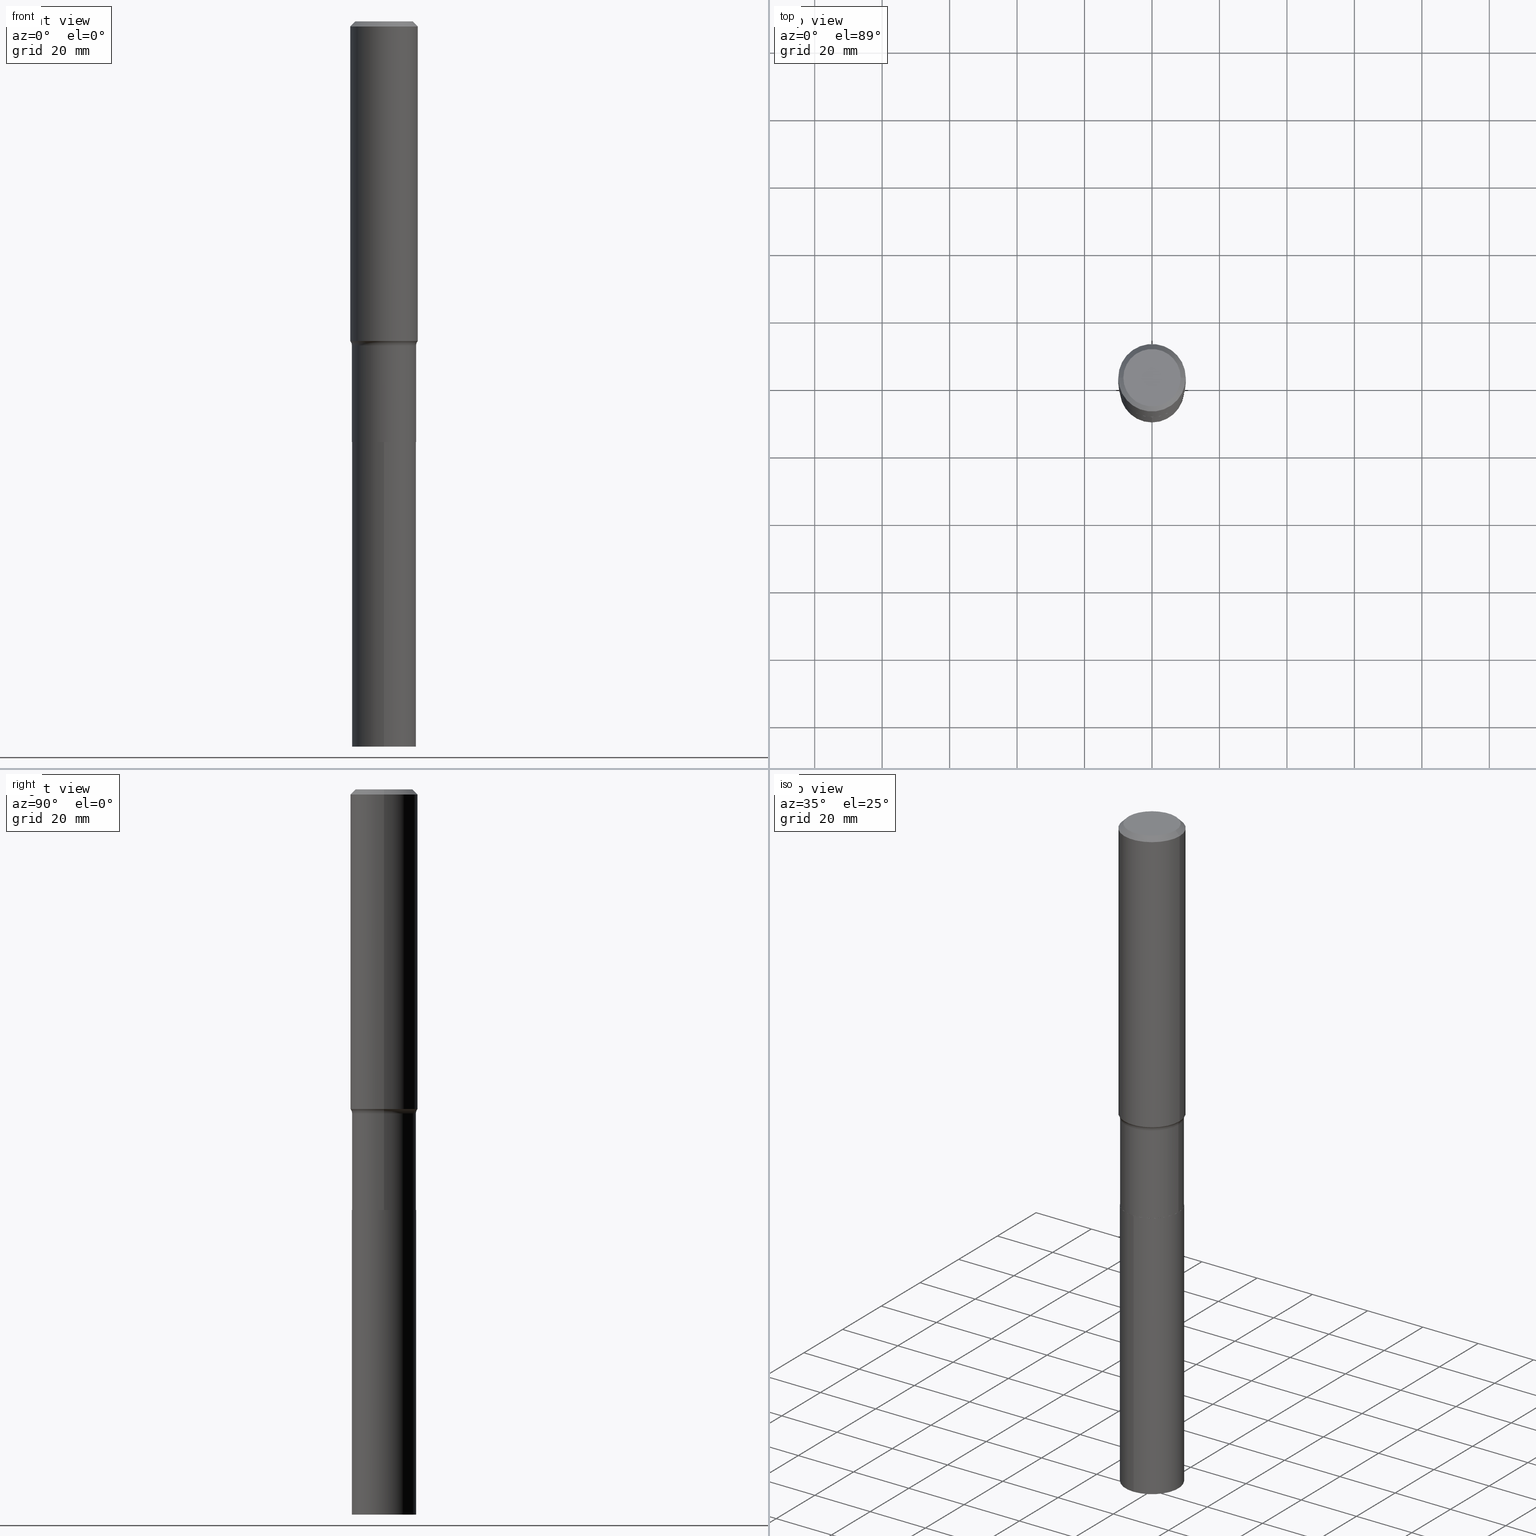
[diagram: canonical four-view strip — front | top / right | iso, engineering-drawing reading convention]
A machine part, canonical four-view strip (front | top / right | iso — engineering-drawing reading convention). The complete STEP part file that produces these views, byte-faithful:
ISO-10303-21;
HEADER;
FILE_DESCRIPTION (( 'STEP AP203' ),
    '1' );
FILE_NAME ('58927.STEP',
    '2024-04-19T14:52:08',
    ( '' ),
    ( '' ),
    'SwSTEP 2.0',
    'SolidWorks 2023',
    '' );
FILE_SCHEMA (( 'CONFIG_CONTROL_DESIGN' ));
ENDSEC;

DATA;
#1 = DIRECTION ( 'NONE',  ( -1.000000000000000000, 7.105427357601001859E-15, 0.000000000000000000 ) ) ;
#2 = CARTESIAN_POINT ( 'NONE',  ( 0.000000000000000000, 0.000000000000000000, 0.000000000000000000 ) ) ;
#3 = DIRECTION ( 'NONE',  ( 1.000000000000000000, -6.982962677686265922E-15, 4.876176775795935793E-29 ) ) ;
#4 = EDGE_CURVE ( 'NONE', #206, #464, #399, .T. ) ;
#5 = PERSON_AND_ORGANIZATION ( #410, #228 ) ;
#6 = DIRECTION ( 'NONE',  ( -6.982962677686266711E-15, -1.000000000000000000, 3.491481338843145583E-15 ) ) ;
#7 = CIRCLE ( 'NONE', #277, 0.3750000000000001110 ) ;
#8 = DIRECTION ( 'NONE',  ( -2.445198401079146413E-29, 3.491868574345426039E-15, 1.000000000000000000 ) ) ;
#9 = APPLICATION_PROTOCOL_DEFINITION ( 'international standard', 'config_control_design', 1994, #262 ) ;
#10 = DIRECTION ( 'NONE',  ( -1.000000000000000000, 6.982962677686265922E-15, -4.876176775795935793E-29 ) ) ;
#11 = CARTESIAN_POINT ( 'NONE',  ( 9.123302149498150808E-29, -1.302565754387660920E-14, -3.730696595443491859 ) ) ;
#12 = CALENDAR_DATE ( 2024, 19, 4 ) ;
#13 = DIRECTION ( 'NONE',  ( -2.445198401079146413E-29, 3.491868574345426433E-15, 1.000000000000000000 ) ) ;
#14 = EDGE_CURVE ( 'NONE', #425, #325, #250, .T. ) ;
#15 = CYLINDRICAL_SURFACE ( 'NONE', #330, 0.3937000000000002164 ) ;
#16 = PERSON_AND_ORGANIZATION ( #410, #228 ) ;
#17 = DIRECTION ( 'NONE',  ( 1.000000000000000000, -6.982962677686265133E-15, 0.000000000000000000 ) ) ;
#18 = EDGE_CURVE ( 'NONE', #465, #60, #77, .T. ) ;
#19 = CARTESIAN_POINT ( 'NONE',  ( -0.3937000000000000499, 2.543002975739700240E-15, -0.05905500000000039884 ) ) ;
#20 = DIRECTION ( 'NONE',  ( -2.445468806185136597E-29, 3.491481338843145583E-15, 1.000000000000000000 ) ) ;
#21 = EDGE_LOOP ( 'NONE', ( #422, #108, #272, #458 ) ) ;
#22 = CC_DESIGN_PERSON_AND_ORGANIZATION_ASSIGNMENT ( #16, #309, ( #286 ) ) ;
#23 = DIRECTION ( 'NONE',  ( -1.000000000000000000, 6.982962677686265922E-15, 0.000000000000000000 ) ) ;
#24 = AXIS2_PLACEMENT_3D ( 'NONE', #11, #47, #17 ) ;
#25 = VERTEX_POINT ( 'NONE', #265 ) ;
#26 = CC_DESIGN_APPROVAL ( #382, ( #407 ) ) ;
#27 = CARTESIAN_POINT ( 'NONE',  ( 1.444171603492642072E-30, -2.061894304653833712E-16, -0.05905500000000039884 ) ) ;
#28 = ORIENTED_EDGE ( 'NONE', *, *, #174, .F. ) ;
#29 = CARTESIAN_POINT ( 'NONE',  ( 0.3750000000000001110, -1.975864204464724661E-14, -4.909100000000002240 ) ) ;
#30 = EDGE_LOOP ( 'NONE', ( #243, #140, #141, #354 ) ) ;
#31 = AXIS2_PLACEMENT_3D ( 'NONE', #283, #296, #456 ) ;
#32 = CC_DESIGN_DATE_AND_TIME_ASSIGNMENT ( #305, #223, ( #235 ) ) ;
#33 = EDGE_CURVE ( 'NONE', #133, #59, #258, .T. ) ;
#34 =( GEOMETRIC_REPRESENTATION_CONTEXT ( 3 ) GLOBAL_UNCERTAINTY_ASSIGNED_CONTEXT ( ( #68 ) ) GLOBAL_UNIT_ASSIGNED_CONTEXT ( ( #403, #207, #438 ) ) REPRESENTATION_CONTEXT ( 'NONE', 'WORKASPACE' ) );
#35 = CARTESIAN_POINT ( 'NONE',  ( 2.664535259100583167E-15, 0.3749999999999829026, -4.909600000000002851 ) ) ;
#36 = CARTESIAN_POINT ( 'NONE',  ( 9.123302149498150808E-29, -1.302565754387660920E-14, -3.730696595443491859 ) ) ;
#37 = ADVANCED_FACE ( 'NONE', ( #38 ), #43, .F. ) ;
#38 = FACE_OUTER_BOUND ( 'NONE', #393, .T. ) ;
#39 = DATE_TIME_ROLE ( 'classification_date' ) ;
#40 = DIRECTION ( 'NONE',  ( 1.000000000000000000, -6.982962677686263555E-15, 0.000000000000000000 ) ) ;
#41 = CIRCLE ( 'NONE', #414, 0.3937000000000004940 ) ;
#42 = APPROVAL_STATUS ( 'not_yet_approved' ) ;
#43 = PLANE ( 'NONE',  #356 ) ;
#44 = DIRECTION ( 'NONE',  ( 1.000000000000000000, -6.982962677686265922E-15, 0.000000000000000000 ) ) ;
#45 = CALENDAR_DATE ( 2024, 19, 4 ) ;
#46 = DIRECTION ( 'NONE',  ( -2.445198401079146413E-29, 3.491868574345426039E-15, 1.000000000000000000 ) ) ;
#47 = DIRECTION ( 'NONE',  ( -2.445468806185136597E-29, 3.491481338843145583E-15, 1.000000000000000000 ) ) ;
#48 = DESIGN_CONTEXT ( 'detailed design', #262, 'design' ) ;
#49 = LINE ( 'NONE', #120, #205 ) ;
#50 = AXIS2_PLACEMENT_3D ( 'NONE', #127, #156, #91 ) ;
#51 = APPROVAL_PERSON_ORGANIZATION ( #229, #322, #260 ) ;
#52 = CARTESIAN_POINT ( 'NONE',  ( 9.249007571872807985E-29, -1.320513157163866504E-14, -3.782100000000001128 ) ) ;
#53 = CYLINDRICAL_SURFACE ( 'NONE', #324, 0.3937000000000002164 ) ;
#54 = CARTESIAN_POINT ( 'NONE',  ( 1.700800700278447744E-28, -9.979009940226196819E-15, -4.909600000000001963 ) ) ;
#55 = EDGE_LOOP ( 'NONE', ( #436, #106, #171, #288 ) ) ;
#56 = AXIS2_PLACEMENT_3D ( 'NONE', #413, #6, #40 ) ;
#57 = PLANE ( 'NONE',  #129 ) ;
#58 = AXIS2_PLACEMENT_3D ( 'NONE', #86, #268, #231 ) ;
#59 = VERTEX_POINT ( 'NONE', #85 ) ;
#60 = VERTEX_POINT ( 'NONE', #443 ) ;
#61 = LENGTH_MEASURE_WITH_UNIT ( LENGTH_MEASURE( 0.02539999999999999897 ), #360 );
#62 = EDGE_LOOP ( 'NONE', ( #401, #164, #246, #93 ) ) ;
#63 = EDGE_CURVE ( 'NONE', #457, #461, #336, .T. ) ;
#64 = ORIENTED_EDGE ( 'NONE', *, *, #71, .T. ) ;
#65 = ORIENTED_EDGE ( 'NONE', *, *, #388, .T. ) ;
#66 = CIRCLE ( 'NONE', #341, 0.3745000000000000551 ) ;
#67 = EDGE_LOOP ( 'NONE', ( #390, #251, #135, #142 ) ) ;
#68 = UNCERTAINTY_MEASURE_WITH_UNIT (LENGTH_MEASURE( 1.000000000000000082E-05 ), #403, 'distance_accuracy_value', 'NONE');
#69 = DIRECTION ( 'NONE',  ( -2.445468806185136597E-29, 3.491481338843145583E-15, 1.000000000000000000 ) ) ;
#70 = FACE_OUTER_BOUND ( 'NONE', #62, .T. ) ;
#71 = EDGE_CURVE ( 'NONE', #465, #25, #41, .T. ) ;
#72 = VECTOR ( 'NONE', #448, 39.37007874015748143 ) ;
#73 = APPROVAL_PERSON_ORGANIZATION ( #367, #382, #444 ) ;
#74 = CARTESIAN_POINT ( 'NONE',  ( -5.008488096090123536E-47, 7.150793614331970485E-33, 2.048068690724060346E-18 ) ) ;
#75 = DIRECTION ( 'NONE',  ( -2.445468806185136597E-29, 3.491481338843145583E-15, 1.000000000000000000 ) ) ;
#76 = PERSON_AND_ORGANIZATION_ROLE ( 'creator' ) ;
#77 = LINE ( 'NONE', #344, #99 ) ;
#78 = ADVANCED_FACE ( 'NONE', ( #411 ), #82, .F. ) ;
#79 = CLOSED_SHELL ( 'NONE', ( #244, #361, #314, #201, #139, #359, #379, #338, #214, #78, #468, #402 ) ) ;
#80 = AXIS2_PLACEMENT_3D ( 'NONE', #405, #333, #3 ) ;
#81 = DATE_AND_TIME ( #412, #294 ) ;
#82 = PLANE ( 'NONE',  #107 ) ;
#83 = CC_DESIGN_APPROVAL ( #322, ( #286 ) ) ;
#84 = DIRECTION ( 'NONE',  ( -1.000000000000000000, 6.982962677686265922E-15, 0.000000000000000000 ) ) ;
#85 = CARTESIAN_POINT ( 'NONE',  ( 0.3749999999999999445, -1.582374257577101506E-14, -3.782100000000001128 ) ) ;
#86 = CARTESIAN_POINT ( 'NONE',  ( 2.069895396668291892E-28, -2.955536956298230734E-14, -8.464600000000002566 ) ) ;
#87 = EDGE_CURVE ( 'NONE', #25, #59, #204, .T. ) ;
#88 = CARTESIAN_POINT ( 'NONE',  ( 2.069895396668291892E-28, -2.955536956298230734E-14, -8.464600000000002566 ) ) ;
#89 = AXIS2_PLACEMENT_3D ( 'NONE', #329, #13, #368 ) ;
#90 = CONICAL_SURFACE ( 'NONE', #363, 0.3745000000000000551, 0.7853981633978580623 ) ;
#91 = DIRECTION ( 'NONE',  ( 1.000000000000000000, -6.982962677686267499E-15, 4.883557194083112901E-29 ) ) ;
#92 = EDGE_LOOP ( 'NONE', ( #209, #427, #169, #216 ) ) ;
#93 = ORIENTED_EDGE ( 'NONE', *, *, #441, .F. ) ;
#94 = DIRECTION ( 'NONE',  ( -6.982962677686265922E-15, -1.000000000000000000, 2.913971193241880372E-15 ) ) ;
#95 = ORIENTED_EDGE ( 'NONE', *, *, #307, .F. ) ;
#96 = CARTESIAN_POINT ( 'NONE',  ( -0.3346450000000000258, 2.439908260507010921E-15, 4.096137381431418257E-18 ) ) ;
#97 = EDGE_LOOP ( 'NONE', ( #105, #241, #284, #249 ) ) ;
#98 = EDGE_CURVE ( 'NONE', #457, #200, #327, .T. ) ;
#99 = VECTOR ( 'NONE', #226, 39.37007874015748143 ) ;
#100 = CIRCLE ( 'NONE', #58, 0.3750000000000000555 ) ;
#101 = EDGE_LOOP ( 'NONE', ( #278, #433 ) ) ;
#102 = EDGE_CURVE ( 'NONE', #206, #434, #442, .T. ) ;
#103 = DIRECTION ( 'NONE',  ( -2.445468806185136597E-29, 3.491481338843145583E-15, 1.000000000000000000 ) ) ;
#104 = ORIENTED_EDGE ( 'NONE', *, *, #183, .T. ) ;
#105 = ORIENTED_EDGE ( 'NONE', *, *, #210, .T. ) ;
#106 = ORIENTED_EDGE ( 'NONE', *, *, #102, .T. ) ;
#107 = AXIS2_PLACEMENT_3D ( 'NONE', #74, #190, #10 ) ;
#108 = ORIENTED_EDGE ( 'NONE', *, *, #431, .F. ) ;
#109 = DIRECTION ( 'NONE',  ( 1.000000000000000000, 0.000000000000000000, 0.000000000000000000 ) ) ;
#110 = LINE ( 'NONE', #310, #72 ) ;
#111 = AXIS2_PLACEMENT_3D ( 'NONE', #239, #170, #94 ) ;
#112 = APPROVAL_STATUS ( 'not_yet_approved' ) ;
#113 = CARTESIAN_POINT ( 'NONE',  ( -2.618611004132230110E-15, -0.3750000000000171529, -4.909600000000000186 ) ) ;
#114 = CC_DESIGN_PERSON_AND_ORGANIZATION_ASSIGNMENT ( #154, #264, ( #235 ) ) ;
#115 = APPROVAL_STATUS ( 'not_yet_approved' ) ;
#116 = LINE ( 'NONE', #113, #179 ) ;
#117 = EDGE_CURVE ( 'NONE', #398, #325, #116, .T. ) ;
#118 = APPROVAL_DATE_TIME ( #370, #382 ) ;
#119 = CARTESIAN_POINT ( 'NONE',  ( 2.664535259100495209E-15, 0.3749999999999829026, -4.909600000000002851 ) ) ;
#120 = CARTESIAN_POINT ( 'NONE',  ( 0.3745000000000000551, -1.975689630397782116E-14, -4.909600000000001963 ) ) ;
#121 = AXIS2_PLACEMENT_3D ( 'NONE', #187, #373, #192 ) ;
#122 = AXIS2_PLACEMENT_3D ( 'NONE', #316, #455, #130 ) ;
#123 = COORDINATED_UNIVERSAL_TIME_OFFSET ( 5, 0, .BEHIND. ) ;
#124 = LINE ( 'NONE', #271, #188 ) ;
#125 = DIRECTION ( 'NONE',  ( 1.000000000000000000, -6.982962677686266711E-15, 4.876176775795935793E-29 ) ) ;
#126 = CARTESIAN_POINT ( 'NONE',  ( 0.3346450000000000258, -2.601499422326145188E-15, 4.096137381465387809E-18 ) ) ;
#127 = CARTESIAN_POINT ( 'NONE',  ( 9.249007571872807985E-29, -1.320513157163866504E-14, -3.782100000000001128 ) ) ;
#128 = ORIENTED_EDGE ( 'NONE', *, *, #33, .T. ) ;
#129 = AXIS2_PLACEMENT_3D ( 'NONE', #54, #364, #202 ) ;
#130 = DIRECTION ( 'NONE',  ( 1.000000000000000000, -6.982962677686265922E-15, 0.000000000000000000 ) ) ;
#131 = ORIENTED_EDGE ( 'NONE', *, *, #166, .T. ) ;
#132 = FACE_OUTER_BOUND ( 'NONE', #92, .T. ) ;
#133 = VERTEX_POINT ( 'NONE', #377 ) ;
#134 = CARTESIAN_POINT ( 'NONE',  ( -2.618611004132142940E-15, -0.3750000000000295874, -8.464600000000000790 ) ) ;
#135 = ORIENTED_EDGE ( 'NONE', *, *, #331, .T. ) ;
#136 = AXIS2_PLACEMENT_3D ( 'NONE', #306, #75, #300 ) ;
#137 = FACE_OUTER_BOUND ( 'NONE', #55, .T. ) ;
#138 = AXIS2_PLACEMENT_3D ( 'NONE', #424, #378, #44 ) ;
#139 = ADVANCED_FACE ( 'NONE', ( #155 ), #304, .T. ) ;
#140 = ORIENTED_EDGE ( 'NONE', *, *, #63, .T. ) ;
#141 = ORIENTED_EDGE ( 'NONE', *, *, #166, .F. ) ;
#142 = ORIENTED_EDGE ( 'NONE', *, *, #33, .F. ) ;
#143 = EDGE_LOOP ( 'NONE', ( #203, #64, #362, #254 ) ) ;
#144 = DIRECTION ( 'NONE',  ( -2.445468806185136597E-29, 3.491481338843145583E-15, 1.000000000000000000 ) ) ;
#145 = CARTESIAN_POINT ( 'NONE',  ( 1.200505091644346010E-28, -1.714003104051489344E-14, -4.909100000000002240 ) ) ;
#146 = FACE_OUTER_BOUND ( 'NONE', #245, .T. ) ;
#147 = DIRECTION ( 'NONE',  ( 0.7071067811865450192, -7.319954787623246579E-15, -0.7071067811865500152 ) ) ;
#148 = CLOSED_SHELL ( 'NONE', ( #222, #151, #369, #37 ) ) ;
#149 = AXIS2_PLACEMENT_3D ( 'NONE', #52, #193, #197 ) ;
#150 = CALENDAR_DATE ( 2024, 19, 4 ) ;
#151 = ADVANCED_FACE ( 'NONE', ( #146 ), #230, .F. ) ;
#152 = CARTESIAN_POINT ( 'NONE',  ( 0.3745000000000000551, -1.975689630397782116E-14, -4.909600000000001963 ) ) ;
#153 = EDGE_CURVE ( 'NONE', #248, #425, #297, .T. ) ;
#154 = PERSON_AND_ORGANIZATION ( #410, #228 ) ;
#155 = FACE_OUTER_BOUND ( 'NONE', #385, .T. ) ;
#156 = DIRECTION ( 'NONE',  ( -2.445468806185136597E-29, 3.491481338843145583E-15, 1.000000000000000000 ) ) ;
#157 = PERSON_AND_ORGANIZATION_ROLE ( 'design_owner' ) ;
#158 = CARTESIAN_POINT ( 'NONE',  ( 0.3937000000000000499, -2.907167492188035412E-15, -0.05905500000000039884 ) ) ;
#159 = CARTESIAN_POINT ( 'NONE',  ( 0.000000000000000000, 0.000000000000000000, 0.000000000000000000 ) ) ;
#160 = AXIS2_PLACEMENT_3D ( 'NONE', #88, #273, #375 ) ;
#161 = LINE ( 'NONE', #313, #269 ) ;
#162 = DIRECTION ( 'NONE',  ( -2.445468806185136877E-29, 3.491481338843145188E-15, 1.000000000000000000 ) ) ;
#163 = DIRECTION ( 'NONE',  ( 1.000000000000000000, -6.982962677686266711E-15, 4.876176775795935793E-29 ) ) ;
#164 = ORIENTED_EDGE ( 'NONE', *, *, #98, .T. ) ;
#165 = CIRCLE ( 'NONE', #24, 0.3937000000000004940 ) ;
#166 = EDGE_CURVE ( 'NONE', #395, #461, #366, .T. ) ;
#167 = APPROVAL_PERSON_ORGANIZATION ( #255, #198, #298 ) ;
#168 = CYLINDRICAL_SURFACE ( 'NONE', #219, 0.3750000000000000555 ) ;
#169 = ORIENTED_EDGE ( 'NONE', *, *, #117, .T. ) ;
#170 = DIRECTION ( 'NONE',  ( -2.445198401079146413E-29, 3.491868574345426433E-15, 1.000000000000000000 ) ) ;
#171 = ORIENTED_EDGE ( 'NONE', *, *, #274, .T. ) ;
#172 = APPLICATION_CONTEXT ( 'configuration controlled 3d designs of mechanical parts and assemblies' ) ;
#173 = DIRECTION ( 'NONE',  ( -2.445468806185136597E-29, 3.491481338843145583E-15, 1.000000000000000000 ) ) ;
#174 = EDGE_CURVE ( 'NONE', #25, #434, #110, .T. ) ;
#175 = AXIS2_PLACEMENT_3D ( 'NONE', #287, #318, #1 ) ;
#176 = ORIENTED_EDGE ( 'NONE', *, *, #87, .F. ) ;
#177 = AXIS2_PLACEMENT_3D ( 'NONE', #225, #335, #109 ) ;
#178 = DIRECTION ( 'NONE',  ( -2.445468806185136597E-29, 3.491481338843145583E-15, 1.000000000000000000 ) ) ;
#179 = VECTOR ( 'NONE', #8, 39.37007874015748143 ) ;
#180 = CIRCLE ( 'NONE', #122, 0.3937000000000000499 ) ;
#181 = CC_DESIGN_APPROVAL ( #198, ( #235 ) ) ;
#182 = DIRECTION ( 'NONE',  ( -0.7071067811868372299, 7.493145998871401767E-15, 0.7071067811862578045 ) ) ;
#183 = EDGE_CURVE ( 'NONE', #461, #133, #124, .T. ) ;
#184 = COORDINATED_UNIVERSAL_TIME_OFFSET ( 5, 0, .BEHIND. ) ;
#185 = DIRECTION ( 'NONE',  ( 2.445198401079146413E-29, -3.491868574345426039E-15, -1.000000000000000000 ) ) ;
#186 = APPLICATION_PROTOCOL_DEFINITION ( 'international standard', 'config_control_design', 1994, #172 ) ;
#187 = CARTESIAN_POINT ( 'NONE',  ( 1.200627365084655066E-28, -1.714177678118431257E-14, -4.909600000000001963 ) ) ;
#188 = VECTOR ( 'NONE', #419, 39.37007874015748143 ) ;
#189 = LOCAL_TIME ( 10, 52, 8.000000000000000000, #376 ) ;
#190 = DIRECTION ( 'NONE',  ( 2.438088387897960049E-29, -3.491481338843145188E-15, -1.000000000000000000 ) ) ;
#191 = COORDINATED_UNIVERSAL_TIME_OFFSET ( 5, 0, .BEHIND. ) ;
#192 = DIRECTION ( 'NONE',  ( 1.000000000000000000, -6.982962677686268288E-15, 0.000000000000000000 ) ) ;
#193 = DIRECTION ( 'NONE',  ( -2.445468806185136597E-29, 3.491481338843145583E-15, 1.000000000000000000 ) ) ;
#194 = LINE ( 'NONE', #19, #259 ) ;
#195 = TOROIDAL_SURFACE ( 'NONE', #449, 0.4549999999999999045, 0.08000000000000023759 ) ;
#196 = PRODUCT ( '58927', '58927', '', ( #418 ) ) ;
#197 = DIRECTION ( 'NONE',  ( 1.000000000000000000, -6.982962677686269077E-15, 0.000000000000000000 ) ) ;
#198 = APPROVAL ( #42, 'UNSPECIFIED' ) ;
#199 = FACE_OUTER_BOUND ( 'NONE', #217, .T. ) ;
#200 = VERTEX_POINT ( 'NONE', #152 ) ;
#201 = ADVANCED_FACE ( 'NONE', ( #221 ), #302, .F. ) ;
#202 = DIRECTION ( 'NONE',  ( 1.000000000000000000, -6.982962677686265922E-15, 4.876176775795935793E-29 ) ) ;
#203 = ORIENTED_EDGE ( 'NONE', *, *, #18, .F. ) ;
#204 = CIRCLE ( 'NONE', #56, 0.08000000000000023759 ) ;
#205 = VECTOR ( 'NONE', #275, 39.37007874015748143 ) ;
#206 = VERTEX_POINT ( 'NONE', #126 ) ;
#207 =( NAMED_UNIT ( * ) PLANE_ANGLE_UNIT ( ) SI_UNIT ( $, .RADIAN. ) );
#208 = ORIENTED_EDGE ( 'NONE', *, *, #232, .F. ) ;
#209 = ORIENTED_EDGE ( 'NONE', *, *, #153, .F. ) ;
#210 = EDGE_CURVE ( 'NONE', #398, #248, #227, .T. ) ;
#211 = CIRCLE ( 'NONE', #31, 0.3346450000000000258 ) ;
#212 = CONICAL_SURFACE ( 'NONE', #430, 0.3937000000000000499, 0.7853981633974447263 ) ;
#213 = CARTESIAN_POINT ( 'NONE',  ( -1.001697619218024707E-46, 1.430158722866394097E-32, 4.096137381448120692E-18 ) ) ;
#214 = ADVANCED_FACE ( 'NONE', ( #311 ), #212, .T. ) ;
#215 = DIRECTION ( 'NONE',  ( -2.445468806185136597E-29, 3.491481338843145583E-15, 1.000000000000000000 ) ) ;
#216 = ORIENTED_EDGE ( 'NONE', *, *, #14, .F. ) ;
#217 = EDGE_LOOP ( 'NONE', ( #355, #435, #319, #28 ) ) ;
#218 = PRODUCT_RELATED_PRODUCT_CATEGORY ( 'detail', '', ( #196 ) ) ;
#219 = AXIS2_PLACEMENT_3D ( 'NONE', #2, #215, #332 ) ;
#220 = APPROVAL_DATE_TIME ( #404, #198 ) ;
#221 = FACE_OUTER_BOUND ( 'NONE', #397, .T. ) ;
#222 = ADVANCED_FACE ( 'NONE', ( #352 ), #417, .T. ) ;
#223 = DATE_TIME_ROLE ( 'creation_date' ) ;
#224 = DIRECTION ( 'NONE',  ( 6.982962677686265922E-15, 1.000000000000000000, -3.491868574345426039E-15 ) ) ;
#225 = CARTESIAN_POINT ( 'NONE',  ( 0.000000000000000000, 0.000000000000000000, 0.000000000000000000 ) ) ;
#226 = DIRECTION ( 'NONE',  ( -2.445468806185136877E-29, 3.491481338843145188E-15, 1.000000000000000000 ) ) ;
#227 = CIRCLE ( 'NONE', #160, 0.3750000000000000555 ) ;
#228 = ORGANIZATION ( 'UNSPECIFIED', 'UNSPECIFIED', '' ) ;
#229 = PERSON_AND_ORGANIZATION ( #410, #228 ) ;
#230 = PLANE ( 'NONE',  #312 ) ;
#231 = DIRECTION ( 'NONE',  ( -6.982962677686265922E-15, -1.000000000000000000, 2.913971193241880372E-15 ) ) ;
#232 = EDGE_CURVE ( 'NONE', #248, #398, #100, .T. ) ;
#233 = DIRECTION ( 'NONE',  ( 1.000000000000000000, -6.982962677686265133E-15, 0.000000000000000000 ) ) ;
#234 = DIRECTION ( 'NONE',  ( -6.982962677686265922E-15, -1.000000000000000000, 2.913971193241880372E-15 ) ) ;
#235 = PRODUCT_DEFINITION ( 'UNKNOWN', '', #407, #48 ) ;
#236 = DIRECTION ( 'NONE',  ( -2.445198401079146413E-29, 3.491868574345426433E-15, 1.000000000000000000 ) ) ;
#237 = DIRECTION ( 'NONE',  ( 1.000000000000000000, -6.982962677686268288E-15, 0.000000000000000000 ) ) ;
#238 = ORIENTED_EDGE ( 'NONE', *, *, #331, .F. ) ;
#239 = CARTESIAN_POINT ( 'NONE',  ( 1.200627365084655066E-28, -1.714177678118431257E-14, -4.909600000000001963 ) ) ;
#240 = DIMENSIONAL_EXPONENTS ( 1.000000000000000000, 0.000000000000000000, 0.000000000000000000, 0.000000000000000000, 0.000000000000000000, 0.000000000000000000, 0.000000000000000000 ) ;
#241 = ORIENTED_EDGE ( 'NONE', *, *, #153, .T. ) ;
#242 = CARTESIAN_POINT ( 'NONE',  ( -0.3937000000000006605, -1.022825079318909047E-14, -3.730696595443491859 ) ) ;
#243 = ORIENTED_EDGE ( 'NONE', *, *, #454, .T. ) ;
#244 = ADVANCED_FACE ( 'NONE', ( #381 ), #415, .T. ) ;
#245 = EDGE_LOOP ( 'NONE', ( #387, #208 ) ) ;
#246 = ORIENTED_EDGE ( 'NONE', *, *, #293, .T. ) ;
#247 = DIRECTION ( 'NONE',  ( 1.000000000000000000, -6.982962677686268288E-15, 0.000000000000000000 ) ) ;
#248 = VERTEX_POINT ( 'NONE', #384 ) ;
#249 = ORIENTED_EDGE ( 'NONE', *, *, #117, .F. ) ;
#250 = CIRCLE ( 'NONE', #89, 0.3750000000000000555 ) ;
#251 = ORIENTED_EDGE ( 'NONE', *, *, #441, .T. ) ;
#252 = VECTOR ( 'NONE', #409, 39.37007874015748143 ) ;
#253 = CARTESIAN_POINT ( 'NONE',  ( -0.3750000000000001110, -1.250804604697640197E-14, -4.909100000000002240 ) ) ;
#254 = ORIENTED_EDGE ( 'NONE', *, *, #343, .F. ) ;
#255 = PERSON_AND_ORGANIZATION ( #410, #228 ) ;
#256 = EDGE_CURVE ( 'NONE', #325, #425, #400, .T. ) ;
#257 = CARTESIAN_POINT ( 'NONE',  ( -0.3745000000000000551, -1.448079423576273541E-14, -4.909600000000001963 ) ) ;
#258 = CIRCLE ( 'NONE', #136, 0.3749999999999999445 ) ;
#259 = VECTOR ( 'NONE', #350, 39.37007874015748143 ) ;
#260 = APPROVAL_ROLE ( '' ) ;
#261 = DIRECTION ( 'NONE',  ( -6.982962677686265922E-15, -1.000000000000000000, 3.491868574345426039E-15 ) ) ;
#262 = APPLICATION_CONTEXT ( 'configuration controlled 3d designs of mechanical parts and assemblies' ) ;
#263 = CC_DESIGN_PERSON_AND_ORGANIZATION_ASSIGNMENT ( #447, #349, ( #407 ) ) ;
#264 = PERSON_AND_ORGANIZATION_ROLE ( 'creator' ) ;
#265 = CARTESIAN_POINT ( 'NONE',  ( 0.3937000000000006605, -1.577484995008169557E-14, -3.730696595443491859 ) ) ;
#266 = COORDINATED_UNIVERSAL_TIME_OFFSET ( 5, 0, .BEHIND. ) ;
#267 = CARTESIAN_POINT ( 'NONE',  ( 7.011209276711207555E-29, -2.429499326635448303E-14, -4.909600000000001963 ) ) ;
#268 = DIRECTION ( 'NONE',  ( -2.445198401079146413E-29, 3.491868574345426433E-15, 1.000000000000000000 ) ) ;
#269 = VECTOR ( 'NONE', #162, 39.37007874015748143 ) ;
#270 = CC_DESIGN_DATE_AND_TIME_ASSIGNMENT ( #81, #39, ( #286 ) ) ;
#271 = CARTESIAN_POINT ( 'NONE',  ( -0.3750000000000000555, 2.664535259100376091E-15, -1.844600658845589598E-29 ) ) ;
#272 = ORIENTED_EDGE ( 'NONE', *, *, #326, .T. ) ;
#273 = DIRECTION ( 'NONE',  ( -2.445198401079146413E-29, 3.491868574345426433E-15, 1.000000000000000000 ) ) ;
#274 = EDGE_CURVE ( 'NONE', #434, #60, #351, .T. ) ;
#275 = DIRECTION ( 'NONE',  ( 0.7071067811868372299, -2.468850131085291414E-15, 0.7071067811862578045 ) ) ;
#276 = ORIENTED_EDGE ( 'NONE', *, *, #388, .F. ) ;
#277 = AXIS2_PLACEMENT_3D ( 'NONE', #145, #144, #386 ) ;
#278 = ORIENTED_EDGE ( 'NONE', *, *, #431, .T. ) ;
#279 = FACE_OUTER_BOUND ( 'NONE', #67, .T. ) ;
#280 = ORIENTED_EDGE ( 'NONE', *, *, #14, .T. ) ;
#281 = CARTESIAN_POINT ( 'NONE',  ( -0.3745000000000000551, -1.447814500858862657E-14, -4.909600000000001963 ) ) ;
#282 = ORIENTED_EDGE ( 'NONE', *, *, #307, .T. ) ;
#283 = CARTESIAN_POINT ( 'NONE',  ( -1.001697619218024707E-46, 1.430158722866394097E-32, 4.096137381448120692E-18 ) ) ;
#284 = ORIENTED_EDGE ( 'NONE', *, *, #256, .F. ) ;
#285 = CONICAL_SURFACE ( 'NONE', #406, 0.3937000000000000499, 0.7853981633974447263 ) ;
#286 = SECURITY_CLASSIFICATION ( '', '', #440 ) ;
#287 = CARTESIAN_POINT ( 'NONE',  ( -0.4549999999999999045, -9.972162123930208692E-15, -3.782100000000001128 ) ) ;
#288 = ORIENTED_EDGE ( 'NONE', *, *, #326, .F. ) ;
#289 = CC_DESIGN_PERSON_AND_ORGANIZATION_ASSIGNMENT ( #372, #157, ( #196 ) ) ;
#290 = EDGE_LOOP ( 'NONE', ( #365, #321 ) ) ;
#291 = EDGE_LOOP ( 'NONE', ( #276, #429, #467, #282 ) ) ;
#292 = ORIENTED_EDGE ( 'NONE', *, *, #71, .F. ) ;
#293 = EDGE_CURVE ( 'NONE', #200, #395, #49, .T. ) ;
#294 = LOCAL_TIME ( 10, 52, 8.000000000000000000, #266 ) ;
#295 = EDGE_CURVE ( 'NONE', #25, #465, #165, .T. ) ;
#296 = DIRECTION ( 'NONE',  ( -2.445468806185136597E-29, 3.491481338843145583E-15, 1.000000000000000000 ) ) ;
#297 = LINE ( 'NONE', #119, #252 ) ;
#298 = APPROVAL_ROLE ( '' ) ;
#299 = CC_DESIGN_PERSON_AND_ORGANIZATION_ASSIGNMENT ( #5, #76, ( #407 ) ) ;
#300 = DIRECTION ( 'NONE',  ( 1.000000000000000000, -6.982962677686269077E-15, 0.000000000000000000 ) ) ;
#301 = AXIS2_PLACEMENT_3D ( 'NONE', #213, #178, #459 ) ;
#302 = TOROIDAL_SURFACE ( 'NONE', #50, 0.4549999999999999045, 0.08000000000000023759 ) ;
#303 = DATE_AND_TIME ( #12, #189 ) ;
#304 = CYLINDRICAL_SURFACE ( 'NONE', #80, 0.3750000000000000555 ) ;
#305 = DATE_AND_TIME ( #150, #392 ) ;
#306 = CARTESIAN_POINT ( 'NONE',  ( 9.249007571872807985E-29, -1.320513157163866504E-14, -3.782100000000001128 ) ) ;
#307 = EDGE_CURVE ( 'NONE', #59, #133, #437, .T. ) ;
#308 = DIRECTION ( 'NONE',  ( -6.982962677686265922E-15, -1.000000000000000000, 2.913971193241880372E-15 ) ) ;
#309 = PERSON_AND_ORGANIZATION_ROLE ( 'classification_officer' ) ;
#310 = CARTESIAN_POINT ( 'NONE',  ( 0.3937000000000002164, -2.749192406205084794E-15, 1.919750796630861012E-29 ) ) ;
#311 = FACE_OUTER_BOUND ( 'NONE', #21, .T. ) ;
#312 = AXIS2_PLACEMENT_3D ( 'NONE', #445, #46, #261 ) ;
#313 = CARTESIAN_POINT ( 'NONE',  ( 0.3750000000000000555, -2.618611004132350016E-15, 1.828566290923476203E-29 ) ) ;
#314 = ADVANCED_FACE ( 'NONE', ( #199 ), #15, .T. ) ;
#315 = FACE_OUTER_BOUND ( 'NONE', #143, .T. ) ;
#316 = CARTESIAN_POINT ( 'NONE',  ( 1.444171603492642072E-30, -2.061894304653833712E-16, -0.05905500000000039884 ) ) ;
#317 = AXIS2_PLACEMENT_3D ( 'NONE', #348, #446, #237 ) ;
#318 = DIRECTION ( 'NONE',  ( 7.105427357601001859E-15, 1.000000000000000000, -3.491481338843145583E-15 ) ) ;
#319 = ORIENTED_EDGE ( 'NONE', *, *, #274, .F. ) ;
#320 = FACE_OUTER_BOUND ( 'NONE', #291, .T. ) ;
#321 = ORIENTED_EDGE ( 'NONE', *, *, #98, .F. ) ;
#322 = APPROVAL ( #112, 'UNSPECIFIED' ) ;
#323 = CYLINDRICAL_SURFACE ( 'NONE', #111, 0.3750000000000000555 ) ;
#324 = AXIS2_PLACEMENT_3D ( 'NONE', #353, #20, #163 ) ;
#325 = VERTEX_POINT ( 'NONE', #420 ) ;
#326 = EDGE_CURVE ( 'NONE', #464, #60, #194, .T. ) ;
#327 = CIRCLE ( 'NONE', #121, 0.3745000000000000551 ) ;
#328 = DIRECTION ( 'NONE',  ( 1.000000000000000000, -6.982962677686267499E-15, 4.883557194083112901E-29 ) ) ;
#329 = CARTESIAN_POINT ( 'NONE',  ( 1.200627365084655291E-28, -1.714177678118431573E-14, -4.909600000000001963 ) ) ;
#330 = AXIS2_PLACEMENT_3D ( 'NONE', #159, #450, #125 ) ;
#331 = EDGE_CURVE ( 'NONE', #395, #59, #161, .T. ) ;
#332 = DIRECTION ( 'NONE',  ( 1.000000000000000000, -6.982962677686265922E-15, 4.876176775795935793E-29 ) ) ;
#333 = DIRECTION ( 'NONE',  ( -2.445468806185136597E-29, 3.491481338843145583E-15, 1.000000000000000000 ) ) ;
#334 = PRODUCT_DEFINITION_SHAPE ( 'NONE', 'NONE',  #235 ) ;
#335 = DIRECTION ( 'NONE',  ( 0.000000000000000000, 0.000000000000000000, 1.000000000000000000 ) ) ;
#336 = LINE ( 'NONE', #257, #462 ) ;
#337 = MANIFOLD_SOLID_BREP ( 'Body-Move/Copy2[1]', #148 ) ;
#338 = ADVANCED_FACE ( 'NONE', ( #315 ), #53, .T. ) ;
#339 = SHAPE_DEFINITION_REPRESENTATION ( #334, #466 ) ;
#340 = DIRECTION ( 'NONE',  ( -2.445468806185136597E-29, 3.491481338843145583E-15, 1.000000000000000000 ) ) ;
#341 = AXIS2_PLACEMENT_3D ( 'NONE', #396, #69, #426 ) ;
#342 = MANIFOLD_SOLID_BREP ( 'Body-Move/Copy2[2]', #79 ) ;
#343 = EDGE_CURVE ( 'NONE', #60, #434, #180, .T. ) ;
#344 = CARTESIAN_POINT ( 'NONE',  ( -0.3937000000000002164, 2.797406750687515970E-15, -1.936584745033357576E-29 ) ) ;
#345 = DIRECTION ( 'NONE',  ( -2.445198401079146413E-29, 3.491868574345426433E-15, 1.000000000000000000 ) ) ;
#346 = CALENDAR_DATE ( 2024, 19, 4 ) ;
#347 = DIRECTION ( 'NONE',  ( 1.000000000000000000, -6.982962677686270655E-15, 0.000000000000000000 ) ) ;
#348 = CARTESIAN_POINT ( 'NONE',  ( 1.200627365084655066E-28, -1.714177678118431257E-14, -4.909600000000001963 ) ) ;
#349 = PERSON_AND_ORGANIZATION_ROLE ( 'design_supplier' ) ;
#350 = DIRECTION ( 'NONE',  ( -0.7071067811865450192, 2.468850131082230634E-15, -0.7071067811865500152 ) ) ;
#351 = CIRCLE ( 'NONE', #138, 0.3937000000000000499 ) ;
#352 = FACE_OUTER_BOUND ( 'NONE', #97, .T. ) ;
#353 = CARTESIAN_POINT ( 'NONE',  ( 0.000000000000000000, 0.000000000000000000, 0.000000000000000000 ) ) ;
#354 = ORIENTED_EDGE ( 'NONE', *, *, #293, .F. ) ;
#355 = ORIENTED_EDGE ( 'NONE', *, *, #295, .T. ) ;
#356 = AXIS2_PLACEMENT_3D ( 'NONE', #267, #185, #224 ) ;
#357 = AXIS2_PLACEMENT_3D ( 'NONE', #439, #340, #347 ) ;
#358 = CC_DESIGN_SECURITY_CLASSIFICATION ( #286, ( #407 ) ) ;
#359 = ADVANCED_FACE ( 'NONE', ( #279 ), #168, .T. ) ;
#360 =( LENGTH_UNIT ( ) NAMED_UNIT ( * ) SI_UNIT ( $, .METRE. ) );
#361 = ADVANCED_FACE ( 'NONE', ( #137 ), #285, .T. ) ;
#362 = ORIENTED_EDGE ( 'NONE', *, *, #174, .T. ) ;
#363 = AXIS2_PLACEMENT_3D ( 'NONE', #432, #103, #247 ) ;
#364 = DIRECTION ( 'NONE',  ( -2.438088387897960049E-29, 3.491481338843145188E-15, 1.000000000000000000 ) ) ;
#365 = ORIENTED_EDGE ( 'NONE', *, *, #454, .F. ) ;
#366 = CIRCLE ( 'NONE', #357, 0.3750000000000001110 ) ;
#367 = PERSON_AND_ORGANIZATION ( #410, #228 ) ;
#368 = DIRECTION ( 'NONE',  ( -6.982962677686265922E-15, -1.000000000000000000, 2.913971193241880372E-15 ) ) ;
#369 = ADVANCED_FACE ( 'NONE', ( #132 ), #323, .T. ) ;
#370 = DATE_AND_TIME ( #346, #423 ) ;
#371 = DIRECTION ( 'NONE',  ( -2.445468806185136597E-29, 3.491481338843145583E-15, 1.000000000000000000 ) ) ;
#372 = PERSON_AND_ORGANIZATION ( #410, #228 ) ;
#373 = DIRECTION ( 'NONE',  ( -2.445468806185136597E-29, 3.491481338843145583E-15, 1.000000000000000000 ) ) ;
#374 = AXIS2_PLACEMENT_3D ( 'NONE', #452, #345, #234 ) ;
#375 = DIRECTION ( 'NONE',  ( -6.982962677686265922E-15, -1.000000000000000000, 2.913971193241880372E-15 ) ) ;
#376 = COORDINATED_UNIVERSAL_TIME_OFFSET ( 5, 0, .BEHIND. ) ;
#377 = CARTESIAN_POINT ( 'NONE',  ( -0.3749999999999999445, -1.250804604697640197E-14, -3.782100000000001128 ) ) ;
#378 = DIRECTION ( 'NONE',  ( -2.445468806185136597E-29, 3.491481338843145583E-15, 1.000000000000000000 ) ) ;
#379 = ADVANCED_FACE ( 'NONE', ( #320 ), #195, .F. ) ;
#380 = CARTESIAN_POINT ( 'NONE',  ( 1.200627365084655066E-28, -1.714177678118431257E-14, -4.909600000000001963 ) ) ;
#381 = FACE_OUTER_BOUND ( 'NONE', #30, .T. ) ;
#382 = APPROVAL ( #115, 'UNSPECIFIED' ) ;
#383 = CIRCLE ( 'NONE', #175, 0.08000000000000023759 ) ;
#384 = CARTESIAN_POINT ( 'NONE',  ( 2.664535259100538991E-15, 0.3749999999999704681, -8.464600000000004343 ) ) ;
#385 = EDGE_LOOP ( 'NONE', ( #131, #104, #95, #238 ) ) ;
#386 = DIRECTION ( 'NONE',  ( 1.000000000000000000, -6.982962677686270655E-15, 0.000000000000000000 ) ) ;
#387 = ORIENTED_EDGE ( 'NONE', *, *, #210, .F. ) ;
#388 = EDGE_CURVE ( 'NONE', #465, #133, #383, .T. ) ;
#389 = FACE_OUTER_BOUND ( 'NONE', #290, .T. ) ;
#390 = ORIENTED_EDGE ( 'NONE', *, *, #183, .F. ) ;
#391 = VECTOR ( 'NONE', #147, 39.37007874015748143 ) ;
#392 = LOCAL_TIME ( 10, 52, 8.000000000000000000, #191 ) ;
#393 = EDGE_LOOP ( 'NONE', ( #453, #280 ) ) ;
#394 = DIRECTION ( 'NONE',  ( 2.445468806185136597E-29, -3.491481338843145583E-15, -1.000000000000000000 ) ) ;
#395 = VERTEX_POINT ( 'NONE', #29 ) ;
#396 = CARTESIAN_POINT ( 'NONE',  ( 1.200627365084655066E-28, -1.714177678118431257E-14, -4.909600000000001963 ) ) ;
#397 = EDGE_LOOP ( 'NONE', ( #292, #65, #128, #176 ) ) ;
#398 = VERTEX_POINT ( 'NONE', #134 ) ;
#399 = CIRCLE ( 'NONE', #301, 0.3346450000000000258 ) ;
#400 = CIRCLE ( 'NONE', #374, 0.3750000000000000555 ) ;
#401 = ORIENTED_EDGE ( 'NONE', *, *, #63, .F. ) ;
#402 = ADVANCED_FACE ( 'NONE', ( #70 ), #90, .T. ) ;
#403 =( CONVERSION_BASED_UNIT ( 'INCH', #61 ) LENGTH_UNIT ( ) NAMED_UNIT ( #240 ) );
#404 = DATE_AND_TIME ( #45, #416 ) ;
#405 = CARTESIAN_POINT ( 'NONE',  ( 0.000000000000000000, 0.000000000000000000, 0.000000000000000000 ) ) ;
#406 = AXIS2_PLACEMENT_3D ( 'NONE', #27, #394, #23 ) ;
#407 = PRODUCT_DEFINITION_FORMATION_WITH_SPECIFIED_SOURCE ( 'ANY', '', #196, .NOT_KNOWN. ) ;
#408 = APPROVAL_DATE_TIME ( #303, #322 ) ;
#409 = DIRECTION ( 'NONE',  ( -2.445198401079146413E-29, 3.491868574345426039E-15, 1.000000000000000000 ) ) ;
#410 = PERSON ( 'UNSPECIFIED', 'UNSPECIFIED', 'UNSPECIFIED', ('UNSPECIFIED'), ('UNSPECIFIED'), ('UNSPECIFIED') ) ;
#411 = FACE_OUTER_BOUND ( 'NONE', #101, .T. ) ;
#412 = CALENDAR_DATE ( 2024, 19, 4 ) ;
#413 = CARTESIAN_POINT ( 'NONE',  ( 0.4549999999999999045, -1.638237958998591513E-14, -3.782100000000001128 ) ) ;
#414 = AXIS2_PLACEMENT_3D ( 'NONE', #36, #371, #233 ) ;
#415 = CONICAL_SURFACE ( 'NONE', #317, 0.3745000000000000551, 0.7853981633978580623 ) ;
#416 = LOCAL_TIME ( 10, 52, 8.000000000000000000, #184 ) ;
#417 = CYLINDRICAL_SURFACE ( 'NONE', #463, 0.3750000000000000555 ) ;
#418 = MECHANICAL_CONTEXT ( 'NONE', #172, 'mechanical' ) ;
#419 = DIRECTION ( 'NONE',  ( -2.445468806185136877E-29, 3.491481338843145188E-15, 1.000000000000000000 ) ) ;
#420 = CARTESIAN_POINT ( 'NONE',  ( -2.618611004132230110E-15, -0.3750000000000171529, -4.909600000000001074 ) ) ;
#421 = DIRECTION ( 'NONE',  ( 2.445468806185136597E-29, -3.491481338843145583E-15, -1.000000000000000000 ) ) ;
#422 = ORIENTED_EDGE ( 'NONE', *, *, #102, .F. ) ;
#423 = LOCAL_TIME ( 10, 52, 8.000000000000000000, #123 ) ;
#424 = CARTESIAN_POINT ( 'NONE',  ( 1.444171603492642072E-30, -2.061894304653833712E-16, -0.05905500000000039884 ) ) ;
#425 = VERTEX_POINT ( 'NONE', #35 ) ;
#426 = DIRECTION ( 'NONE',  ( 1.000000000000000000, -6.982962677686268288E-15, 0.000000000000000000 ) ) ;
#427 = ORIENTED_EDGE ( 'NONE', *, *, #232, .T. ) ;
#428 = CARTESIAN_POINT ( 'NONE',  ( 0.3937000000000000499, -2.955381836670466588E-15, -0.05905500000000039884 ) ) ;
#429 = ORIENTED_EDGE ( 'NONE', *, *, #295, .F. ) ;
#430 = AXIS2_PLACEMENT_3D ( 'NONE', #451, #421, #84 ) ;
#431 = EDGE_CURVE ( 'NONE', #464, #206, #211, .T. ) ;
#432 = CARTESIAN_POINT ( 'NONE',  ( 1.200627365084655066E-28, -1.714177678118431257E-14, -4.909600000000001963 ) ) ;
#433 = ORIENTED_EDGE ( 'NONE', *, *, #4, .T. ) ;
#434 = VERTEX_POINT ( 'NONE', #428 ) ;
#435 = ORIENTED_EDGE ( 'NONE', *, *, #18, .T. ) ;
#436 = ORIENTED_EDGE ( 'NONE', *, *, #4, .F. ) ;
#437 = CIRCLE ( 'NONE', #149, 0.3749999999999999445 ) ;
#438 =( NAMED_UNIT ( * ) SI_UNIT ( $, .STERADIAN. ) SOLID_ANGLE_UNIT ( ) );
#439 = CARTESIAN_POINT ( 'NONE',  ( 1.200505091644346010E-28, -1.714003104051489344E-14, -4.909100000000002240 ) ) ;
#440 = SECURITY_CLASSIFICATION_LEVEL ( 'unclassified' ) ;
#441 = EDGE_CURVE ( 'NONE', #461, #395, #7, .T. ) ;
#442 = LINE ( 'NONE', #158, #391 ) ;
#443 = CARTESIAN_POINT ( 'NONE',  ( -0.3937000000000000499, -3.818516736483479131E-15, -0.05905500000000039884 ) ) ;
#444 = APPROVAL_ROLE ( '' ) ;
#445 = CARTESIAN_POINT ( 'NONE',  ( 3.476018441898249035E-29, -5.421959350308692208E-14, -8.464600000000000790 ) ) ;
#446 = DIRECTION ( 'NONE',  ( -2.445468806185136597E-29, 3.491481338843145583E-15, 1.000000000000000000 ) ) ;
#447 = PERSON_AND_ORGANIZATION ( #410, #228 ) ;
#448 = DIRECTION ( 'NONE',  ( -2.445468806185136877E-29, 3.491481338843145188E-15, 1.000000000000000000 ) ) ;
#449 = AXIS2_PLACEMENT_3D ( 'NONE', #460, #173, #328 ) ;
#450 = DIRECTION ( 'NONE',  ( -2.445468806185136597E-29, 3.491481338843145583E-15, 1.000000000000000000 ) ) ;
#451 = CARTESIAN_POINT ( 'NONE',  ( 1.444171603492642072E-30, -2.061894304653833712E-16, -0.05905500000000039884 ) ) ;
#452 = CARTESIAN_POINT ( 'NONE',  ( 1.200627365084655291E-28, -1.714177678118431573E-14, -4.909600000000001963 ) ) ;
#453 = ORIENTED_EDGE ( 'NONE', *, *, #256, .T. ) ;
#454 = EDGE_CURVE ( 'NONE', #200, #457, #66, .T. ) ;
#455 = DIRECTION ( 'NONE',  ( -2.445468806185136597E-29, 3.491481338843145583E-15, 1.000000000000000000 ) ) ;
#456 = DIRECTION ( 'NONE',  ( 1.000000000000000000, -6.982962677686267499E-15, 4.876152824003125403E-29 ) ) ;
#457 = VERTEX_POINT ( 'NONE', #281 ) ;
#458 = ORIENTED_EDGE ( 'NONE', *, *, #343, .T. ) ;
#459 = DIRECTION ( 'NONE',  ( 1.000000000000000000, -6.982962677686267499E-15, 4.876152824003125403E-29 ) ) ;
#460 = CARTESIAN_POINT ( 'NONE',  ( 9.249007571872807985E-29, -1.320513157163866504E-14, -3.782100000000001128 ) ) ;
#461 = VERTEX_POINT ( 'NONE', #253 ) ;
#462 = VECTOR ( 'NONE', #182, 39.37007874015748143 ) ;
#463 = AXIS2_PLACEMENT_3D ( 'NONE', #380, #236, #308 ) ;
#464 = VERTEX_POINT ( 'NONE', #96 ) ;
#465 = VERTEX_POINT ( 'NONE', #242 ) ;
#466 = ADVANCED_BREP_SHAPE_REPRESENTATION ( '58927', ( #337, #342, #177 ), #34 ) ;
#467 = ORIENTED_EDGE ( 'NONE', *, *, #87, .T. ) ;
#468 = ADVANCED_FACE ( 'NONE', ( #389 ), #57, .F. ) ;
ENDSEC;
END-ISO-10303-21;
